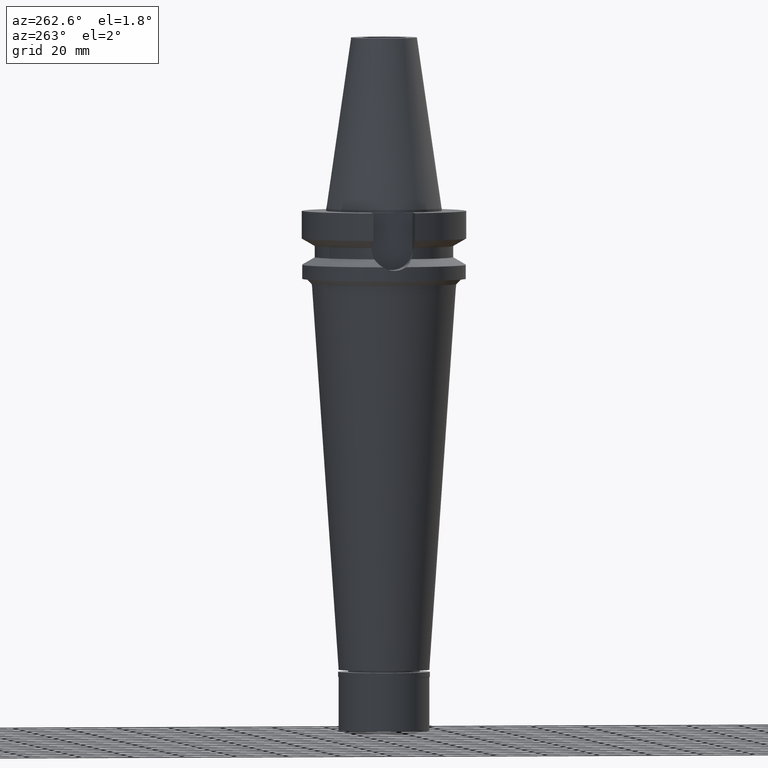
[diagram: clean part render]
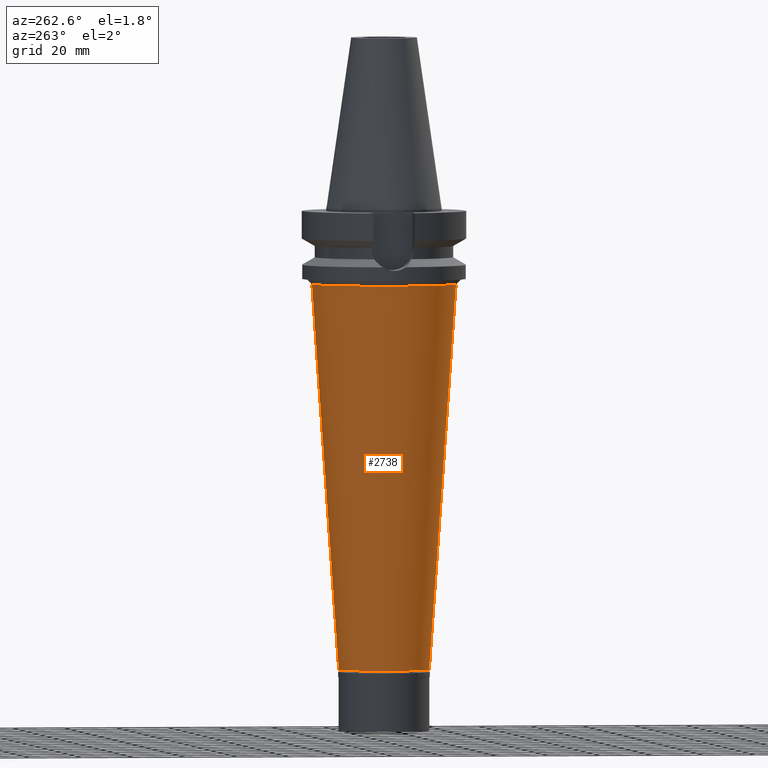
[diagram: same view with one face highlighted and labeled with its STEP entity id]
A machine part, auxiliary view. The second image highlights one B-rep face of the part: STEP entity #2738.
In plain terms, the highlighted conical surface has half-angle 4 deg.
Its self-contained STEP definition (entity closure, byte-faithful):
#13 = VERTEX_POINT ( 'NONE', #1326 ) ;
#52 = CARTESIAN_POINT ( 'NONE',  ( 0.0000000000000000000, 0.0000000000000000000, -29.00000000000000000 ) ) ;
#71 = ORIENTED_EDGE ( 'NONE', *, *, #283, .T. ) ;
#151 = ORIENTED_EDGE ( 'NONE', *, *, #2700, .T. ) ;
#235 = AXIS2_PLACEMENT_3D ( 'NONE', #52, #1036, #1519 ) ;
#265 = EDGE_CURVE ( 'NONE', #13, #3064, #1693, .T. ) ;
#283 = EDGE_CURVE ( 'NONE', #3064, #413, #2113, .T. ) ;
#413 = VERTEX_POINT ( 'NONE', #632 ) ;
#557 = DIRECTION ( 'NONE',  ( 0.0000000000000000000, 1.000000000000000000, 0.0000000000000000000 ) ) ;
#632 = CARTESIAN_POINT ( 'NONE',  ( 0.0000000000000000000, -17.50000000000000000, -176.6999999999999886 ) ) ;
#742 = AXIS2_PLACEMENT_3D ( 'NONE', #2397, #2684, #2441 ) ;
#973 = ORIENTED_EDGE ( 'NONE', *, *, #1108, .F. ) ;
#1036 = DIRECTION ( 'NONE',  ( 0.0000000000000000000, 0.0000000000000000000, -1.000000000000000000 ) ) ;
#1108 = EDGE_CURVE ( 'NONE', #1977, #413, #2204, .T. ) ;
#1280 = CARTESIAN_POINT ( 'NONE',  ( 0.0000000000000000000, -27.82819012406000070, -29.00000000000000000 ) ) ;
#1326 = CARTESIAN_POINT ( 'NONE',  ( 0.0000000000000000000, 27.82819012406000070, -29.00000000000000000 ) ) ;
#1451 = CONICAL_SURFACE ( 'NONE', #2871, 22.66409506202999680, 0.06981317007975955391 ) ;
#1519 = DIRECTION ( 'NONE',  ( 0.0000000000000000000, -1.000000000000000000, 0.0000000000000000000 ) ) ;
#1680 = CARTESIAN_POINT ( 'NONE',  ( 0.0000000000000000000, 27.82819012406000070, -29.00000000000000000 ) ) ;
#1693 = LINE ( 'NONE', #1680, #2254 ) ;
#1765 = DIRECTION ( 'NONE',  ( 0.0000000000000000000, 0.0000000000000000000, 1.000000000000000000 ) ) ;
#1820 = VECTOR ( 'NONE', #2350, 999.9999999999998863 ) ;
#1852 = CARTESIAN_POINT ( 'NONE',  ( 0.0000000000000000000, -27.82819012406000070, -29.00000000000000000 ) ) ;
#1926 = ORIENTED_EDGE ( 'NONE', *, *, #265, .T. ) ;
#1977 = VERTEX_POINT ( 'NONE', #1280 ) ;
#1994 = CARTESIAN_POINT ( 'NONE',  ( 0.0000000000000000000, 0.0000000000000000000, -102.8499999999999943 ) ) ;
#2022 = CARTESIAN_POINT ( 'NONE',  ( 0.0000000000000000000, 17.50000000000000000, -176.6999999999999886 ) ) ;
#2113 = CIRCLE ( 'NONE', #742, 17.50000000000000000 ) ;
#2204 = LINE ( 'NONE', #1852, #1820 ) ;
#2242 = FACE_OUTER_BOUND ( 'NONE', #2894, .T. ) ;
#2254 = VECTOR ( 'NONE', #2934, 999.9999999999998863 ) ;
#2350 = DIRECTION ( 'NONE',  ( 0.0000000000000000000, 0.06975647374414160884, -0.9975640502598231985 ) ) ;
#2397 = CARTESIAN_POINT ( 'NONE',  ( 0.0000000000000000000, 0.0000000000000000000, -176.6999999999999886 ) ) ;
#2441 = DIRECTION ( 'NONE',  ( 0.0000000000000000000, 1.000000000000000000, 0.0000000000000000000 ) ) ;
#2551 = CIRCLE ( 'NONE', #235, 27.82819012406000070 ) ;
#2684 = DIRECTION ( 'NONE',  ( 0.0000000000000000000, 0.0000000000000000000, 1.000000000000000000 ) ) ;
#2700 = EDGE_CURVE ( 'NONE', #1977, #13, #2551, .T. ) ;
#2738 = ADVANCED_FACE ( 'NONE', ( #2242 ), #1451, .T. ) ;
#2871 = AXIS2_PLACEMENT_3D ( 'NONE', #1994, #1765, #557 ) ;
#2894 = EDGE_LOOP ( 'NONE', ( #71, #973, #151, #1926 ) ) ;
#2934 = DIRECTION ( 'NONE',  ( 0.0000000000000000000, -0.06975647374414160884, -0.9975640502598231985 ) ) ;
#3064 = VERTEX_POINT ( 'NONE', #2022 ) ;